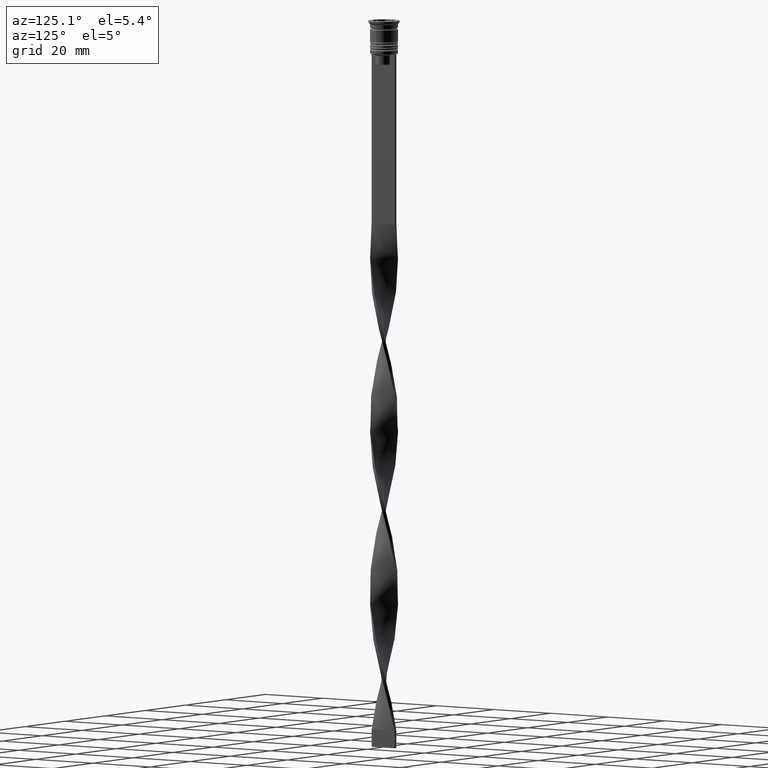
[diagram: clean part render]
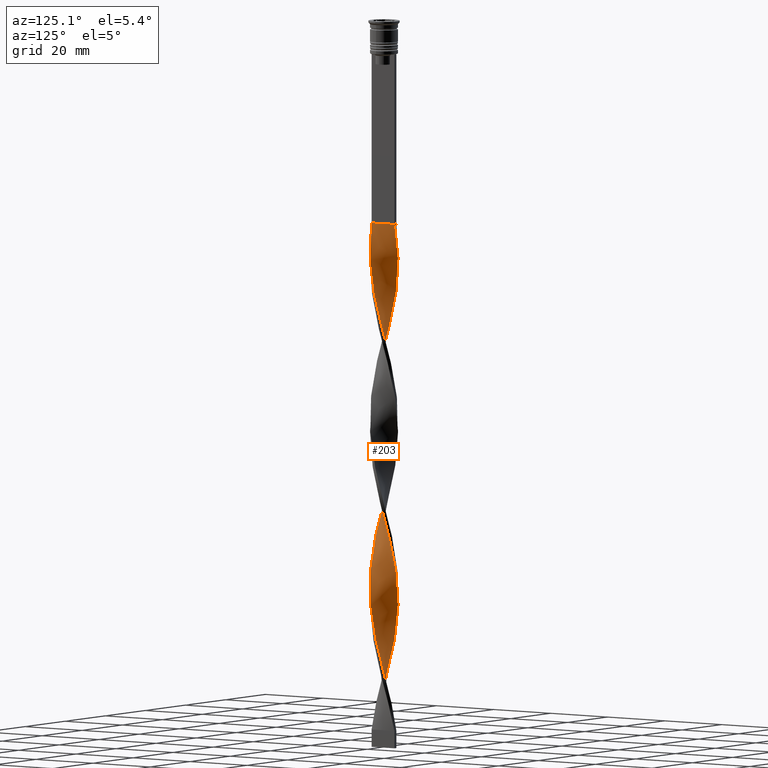
[diagram: same view with one face highlighted and labeled with its STEP entity id]
A machine part, auxiliary view. The second image highlights one B-rep face of the part: STEP entity #203.
In plain terms, the highlighted face is a freeform B-spline surface patch.
Its self-contained STEP definition (entity closure, byte-faithful):
#2 = CARTESIAN_POINT ( 'NONE',  ( 3.306990529297890724, -2.335239837431193788, -71.38235294117646390 ) ) ;
#11 = CARTESIAN_POINT ( 'NONE',  ( -3.679781925323283076, -1.687820026322619738, -188.7549019607843093 ) ) ;
#17 = CARTESIAN_POINT ( 'NONE',  ( -2.325278115975899063, -3.292883490705915683, -144.3823529411764639 ) ) ;
#18 = CARTESIAN_POINT ( 'NONE',  ( -3.357783987531980152, 2.230535068783684682, -75.67647058823528994 ) ) ;
#39 = CARTESIAN_POINT ( 'NONE',  ( 2.020147525076906980, 3.508352239459040067, -194.4803921568627629 ) ) ;
#41 = CARTESIAN_POINT ( 'NONE',  ( -0.2435115214243304405, 4.023767157643892034, -61.36274509803921262 ) ) ;
#53 = CARTESIAN_POINT ( 'NONE',  ( 1.680620083644616125, 3.664084624357134778, -195.9117647058823479 ) ) ;
#59 = CARTESIAN_POINT ( 'NONE',  ( -2.630408706874892033, -3.077414741952792188, -142.9509803921568789 ) ) ;
#77 = CARTESIAN_POINT ( 'NONE',  ( 3.064287033196558596, -2.619187847059357921, -167.2843137254901933 ) ) ;
#78 = CARTESIAN_POINT ( 'NONE',  ( -3.856468655234277065, 1.231739002543613237, -79.97058823529411598 ) ) ;
#83 = CARTESIAN_POINT ( 'NONE',  ( -3.306990529297891612, 2.335239837431193344, -120.0490196078431211 ) ) ;
#100 = CARTESIAN_POINT ( 'NONE',  ( 0.1293454150318811002, -4.046331823121016136, -154.4019607843137294 ) ) ;
#113 = CARTESIAN_POINT ( 'NONE',  ( 1.582314657248345080, -3.726367102775659745, -62.79411764705881893 ) ) ;
#125 = CARTESIAN_POINT ( 'NONE',  ( -2.530837219374230340, -3.137652461479778943, -98.57843137254901933 ) ) ;
#132 = CARTESIAN_POINT ( 'NONE',  ( -3.493386227310586456, -2.011529931876905319, -92.85294117647057988 ) ) ;
#141 = CARTESIAN_POINT ( 'NONE',  ( -1.582314657248345968, -3.726367102775659301, -102.8725490196078312 ) ) ;
#150 = CARTESIAN_POINT ( 'NONE',  ( 2.240090901653235100, -3.372169066272035387, -65.65686274509803866 ) ) ;
#161 = CARTESIAN_POINT ( 'NONE',  ( 4.041005374160881125, 0.2445547488692193516, -134.3627450980391984 ) ) ;
#167 = CARTESIAN_POINT ( 'NONE',  ( -2.530837219374230784, 3.137652461479778498, -115.7549019607843093 ) ) ;
#175 = CARTESIAN_POINT ( 'NONE',  ( -0.1293454150318806006, -4.046331823121015248, -108.5980392156862706 ) ) ;
#181 = CARTESIAN_POINT ( 'NONE',  ( -2.821583537095227356, -2.903135856687522942, -97.14705882352940591 ) ) ;
#190 = CARTESIAN_POINT ( 'NONE',  ( 3.927262761293754956, -0.9829235285346253903, -77.10784313725490335 ) ) ;
#196 = CARTESIAN_POINT ( 'NONE',  ( -3.936802525448486634, 0.8669405260007252423, -178.7352941176470438 ) ) ;
#198 = CARTESIAN_POINT ( 'NONE',  ( 2.890751590931330384, 2.809547159157145035, -92.85294117647057988 ) ) ;
#203 = ADVANCED_FACE ( 'NONE', ( #3151 ), #3420, .T. ) ;
#206 = CARTESIAN_POINT ( 'NONE',  ( 0.2435115214243295800, -4.023767157643892034, -110.0294117647058698 ) ) ;
#228 = CARTESIAN_POINT ( 'NONE',  ( 3.064287033196558596, -2.619187847059357921, -69.95098039215686470 ) ) ;
#230 = CARTESIAN_POINT ( 'NONE',  ( 2.020147525076905648, -3.508352239459040067, -117.1862745098039369 ) ) ;
#250 = CARTESIAN_POINT ( 'NONE',  ( -2.890751590931329940, 2.809547159157145479, -170.1470588235293917 ) ) ;
#253 = CARTESIAN_POINT ( 'NONE',  ( -2.530837219374230340, -3.137652461479778943, -195.9117647058823479 ) ) ;
#257 = CARTESIAN_POINT ( 'NONE',  ( 3.679781925323283076, -1.687820026322619293, -74.24509803921567652 ) ) ;
#262 = CARTESIAN_POINT ( 'NONE',  ( -0.4999999999999994449, 4.000000000000000000, -204.5000000000000000 ) ) ;
#276 = CARTESIAN_POINT ( 'NONE',  ( 3.064287033196558596, -2.619187847059357921, -69.95098039215686470 ) ) ;
#290 = CARTESIAN_POINT ( 'NONE',  ( -3.936802525448487522, -0.8669405260007234659, -132.9313725490196134 ) ) ;
#294 = CARTESIAN_POINT ( 'NONE',  ( -3.927262761293755400, -0.9829235285346250572, -185.8921568627451109 ) ) ;
#314 = CARTESIAN_POINT ( 'NONE',  ( -3.306990529297891168, 2.335239837431193344, -120.0490196078431353 ) ) ;
#333 = CARTESIAN_POINT ( 'NONE',  ( 2.890751590931330384, 2.809547159157145035, -190.1862745098039227 ) ) ;
#345 = CARTESIAN_POINT ( 'NONE',  ( -0.5000000000000005551, -4.000000000000000000, -204.5000000000000000 ) ) ;
#359 = CARTESIAN_POINT ( 'NONE',  ( 0.9787305500464337227, 3.910509750710999821, -198.7745098039215463 ) ) ;
#375 = CARTESIAN_POINT ( 'NONE',  ( 0.8706545849681190941, -3.953668176878985197, -157.2647058823529278 ) ) ;
#379 = CARTESIAN_POINT ( 'NONE',  ( -3.064287033196558596, 2.619187847059357921, -118.6176470588235219 ) ) ;
#395 = CARTESIAN_POINT ( 'NONE',  ( -1.911202779450790201, 3.549268084523846234, -112.8921568627450966 ) ) ;
#396 = CARTESIAN_POINT ( 'NONE',  ( 3.357783987531980152, 2.230535068783684238, -187.3235294117646959 ) ) ;
#403 = ORIENTED_EDGE ( 'NONE', *, *, #1551, .F. ) ;
#407 = CARTESIAN_POINT ( 'NONE',  ( -2.630408706874893365, 3.077414741952792188, -71.38235294117646390 ) ) ;
#411 = VERTEX_POINT ( 'NONE', #3574 ) ;
#430 = CARTESIAN_POINT ( 'NONE',  ( -1.341092642212326380, 3.819817009255230822, -65.65686274509803866 ) ) ;
#435 = CARTESIAN_POINT ( 'NONE',  ( 1.226484621108231199, 3.840017639827321805, -152.9705882352941160 ) ) ;
#444 = CARTESIAN_POINT ( 'NONE',  ( -2.530837219374230340, -3.137652461479778943, -98.57843137254901933 ) ) ;
#453 = CARTESIAN_POINT ( 'NONE',  ( 1.341092642212325936, -3.819817009255230822, -114.3235294117646959 ) ) ;
#462 = CARTESIAN_POINT ( 'NONE',  ( -2.325278115975899507, 3.292883490705915239, -69.95098039215686470 ) ) ;
#472 = CARTESIAN_POINT ( 'NONE',  ( 3.151094474987766514, -2.541679576361500992, -122.9117647058823621 ) ) ;
#492 = CARTESIAN_POINT ( 'NONE',  ( 4.017136395662697979, -0.5021420494578380245, -131.5000000000000000 ) ) ;
#501 = CARTESIAN_POINT ( 'NONE',  ( 2.630408706874893809, -3.077414741952791744, -120.0490196078431211 ) ) ;
#513 = CARTESIAN_POINT ( 'NONE',  ( 1.226484621108232309, -3.840017639827321805, -61.36274509803921262 ) ) ;
#518 = CARTESIAN_POINT ( 'NONE',  ( 3.984134067727318040, -0.6137391387019215383, -78.53921568627450256 ) ) ;
#520 = CARTESIAN_POINT ( 'NONE',  ( 0.6163684578805417313, -4.001202492166771485, -111.4607843137254974 ) ) ;
#527 = CARTESIAN_POINT ( 'NONE',  ( -4.041005374160881125, -0.2445547488692189353, -183.0294117647059124 ) ) ;
#531 = CARTESIAN_POINT ( 'NONE',  ( 3.984134067727318040, -0.6137391387019215383, -78.53921568627450256 ) ) ;
#543 = CARTESIAN_POINT ( 'NONE',  ( 3.927262761293754956, 0.9829235285346239470, -137.2254901960784821 ) ) ;
#556 = CARTESIAN_POINT ( 'NONE',  ( -0.1293454150318815721, 4.046331823121016136, -105.7352941176470722 ) ) ;
#565 = CARTESIAN_POINT ( 'NONE',  ( 2.821583537095227356, 2.903135856687522498, -145.8137254901960489 ) ) ;
#569 = CARTESIAN_POINT ( 'NONE',  ( -4.041005374160881125, 0.2445547488692170757, -128.6372549019607447 ) ) ;
#571 = CARTESIAN_POINT ( 'NONE',  ( -4.029070884911789996, 0.1287936502943097528, -181.5980392156862706 ) ) ;
#581 = CARTESIAN_POINT ( 'NONE',  ( 3.357783987531980152, 2.230535068783684238, -89.99019607843136725 ) ) ;
#614 = CARTESIAN_POINT ( 'NONE',  ( 3.803522343308519016, -1.335371777428622009, -173.0098039215686185 ) ) ;
#632 = CARTESIAN_POINT ( 'NONE',  ( 3.357783987531980152, 2.230535068783684238, -187.3235294117646959 ) ) ;
#651 = CARTESIAN_POINT ( 'NONE',  ( 0.2435115214243305515, 4.023767157643892034, -201.6372549019607732 ) ) ;
#652 = CARTESIAN_POINT ( 'NONE',  ( -2.020147525076906980, 3.508352239459040067, -68.51960784313725128 ) ) ;
#659 = CARTESIAN_POINT ( 'NONE',  ( 3.064287033196558596, -2.619187847059357921, -167.2843137254901933 ) ) ;
#668 = CARTESIAN_POINT ( 'NONE',  ( -2.530837219374230340, -3.137652461479778943, -195.9117647058823479 ) ) ;
#677 = CARTESIAN_POINT ( 'NONE',  ( -1.680620083644617901, -3.664084624357133446, -147.2450980392156907 ) ) ;
#690 = CARTESIAN_POINT ( 'NONE',  ( 0.5000000000000000000, -4.000000000000000000, -58.50000000000000000 ) ) ;
#697 = CARTESIAN_POINT ( 'NONE',  ( -3.856468655234277065, -1.231739002543614125, -134.3627450980391984 ) ) ;
#717 = CARTESIAN_POINT ( 'NONE',  ( 0.1293454150318809337, 4.046331823121015248, -59.93137254901961342 ) ) ;
#729 = CARTESIAN_POINT ( 'NONE',  ( -0.2435115214243304405, 4.023767157643892034, -61.36274509803921262 ) ) ;
#737 = CARTESIAN_POINT ( 'NONE',  ( 1.582314657248346412, 3.726367102775658413, -151.5392156862744741 ) ) ;
#751 = CARTESIAN_POINT ( 'NONE',  ( -3.064287033196559040, -2.619187847059357477, -95.71568627450979250 ) ) ;
#759 = CARTESIAN_POINT ( 'NONE',  ( 3.856468655234277954, -1.231739002543611905, -128.6372549019607732 ) ) ;
#762 = CARTESIAN_POINT ( 'NONE',  ( -1.911202779450790201, 3.549268084523846234, -112.8921568627450966 ) ) ;
#770 = CARTESIAN_POINT ( 'NONE',  ( -3.679781925323283076, -1.687820026322619738, -91.42156862745096646 ) ) ;
#777 = CARTESIAN_POINT ( 'NONE',  ( -0.1293454150318806006, -4.046331823121015248, -108.5980392156862706 ) ) ;
#787 = CARTESIAN_POINT ( 'NONE',  ( -1.680620083644616125, 3.664084624357134778, -67.08823529411763786 ) ) ;
#795 = CARTESIAN_POINT ( 'NONE',  ( -3.710471077655235206, 1.575564781874740694, -175.8725490196078454 ) ) ;
#813 = CARTESIAN_POINT ( 'NONE',  ( -3.679781925323283076, -1.687820026322619738, -91.42156862745098067 ) ) ;
#832 = CARTESIAN_POINT ( 'NONE',  ( 0.6163684578805426195, 4.001202492166770597, -102.8725490196078312 ) ) ;
#840 = CARTESIAN_POINT ( 'NONE',  ( 4.041005374160881125, -0.2445547488692185190, -79.97058823529411598 ) ) ;
#853 = CARTESIAN_POINT ( 'NONE',  ( 3.856468655234277065, 1.231739002543613681, -85.69607843137254122 ) ) ;
#860 = CARTESIAN_POINT ( 'NONE',  ( 0.1293454150318810725, -4.046331823121016136, -154.4019607843137294 ) ) ;
#864 = CARTESIAN_POINT ( 'NONE',  ( 2.325278115975899507, -3.292883490705915239, -118.6176470588235219 ) ) ;
#874 = CARTESIAN_POINT ( 'NONE',  ( -3.679781925323283076, -1.687820026322619738, -188.7549019607843093 ) ) ;
#889 = CARTESIAN_POINT ( 'NONE',  ( -3.936802525448486634, 0.8669405260007252423, -178.7352941176470438 ) ) ;
#899 = CARTESIAN_POINT ( 'NONE',  ( -3.679781925323282632, 1.687820026322619960, -122.9117647058823479 ) ) ;
#908 = CARTESIAN_POINT ( 'NONE',  ( -3.856468655234276621, 1.231739002543613237, -177.3039215686274304 ) ) ;
#915 = CARTESIAN_POINT ( 'NONE',  ( 1.911202779450789535, -3.549268084523846678, -161.5588235294117680 ) ) ;
#925 = CARTESIAN_POINT ( 'NONE',  ( 2.821583537095227356, -2.903135856687522942, -165.8529411764705799 ) ) ;
#938 = CARTESIAN_POINT ( 'NONE',  ( 3.856468655234277065, 1.231739002543613681, -183.0294117647059124 ) ) ;
#959 = CARTESIAN_POINT ( 'NONE',  ( -3.984134067727318040, 0.6137391387019228706, -127.2058823529411740 ) ) ;
#960 = CARTESIAN_POINT ( 'NONE',  ( -2.630408706874892921, 3.077414741952791744, -71.38235294117646390 ) ) ;
#969 = CARTESIAN_POINT ( 'NONE',  ( 1.911202779450789535, -3.549268084523846678, -161.5588235294117680 ) ) ;
#975 = CARTESIAN_POINT ( 'NONE',  ( 0.9787305500464337227, 3.910509750710999821, -198.7745098039215463 ) ) ;
#984 = CARTESIAN_POINT ( 'NONE',  ( -2.890751590931330828, -2.809547159157144591, -141.5196078431372371 ) ) ;
#999 = CARTESIAN_POINT ( 'NONE',  ( 0.2435115214243305515, 4.023767157643892034, -201.6372549019607732 ) ) ;
#1007 = CARTESIAN_POINT ( 'NONE',  ( -1.341092642212325714, -3.819817009255231266, -148.6764705882353326 ) ) ;
#1008 = CARTESIAN_POINT ( 'NONE',  ( 3.856468655234276621, 1.231739002543613681, -183.0294117647059124 ) ) ;
#1010 = CARTESIAN_POINT ( 'NONE',  ( -3.936802525448486634, 0.8669405260007252423, -81.40196078431371518 ) ) ;
#1027 = CARTESIAN_POINT ( 'NONE',  ( 0.5000000000000000000, 4.000000000000000000, -58.50000000000000000 ) ) ;
#1037 = CARTESIAN_POINT ( 'NONE',  ( -4.041005374160881125, -0.2445547488692189630, -85.69607843137254122 ) ) ;
#1044 = CARTESIAN_POINT ( 'NONE',  ( 0.5000000000000000000, 4.000000000000000000, -155.8333333333333144 ) ) ;
#1057 = CARTESIAN_POINT ( 'NONE',  ( -4.017136395662697979, 0.5021420494578374694, -82.83333333333332860 ) ) ;
#1065 = CARTESIAN_POINT ( 'NONE',  ( -1.341092642212326380, 3.819817009255230822, -162.9901960784313530 ) ) ;
#1081 = CARTESIAN_POINT ( 'NONE',  ( -2.240090901653235544, -3.372169066272034499, -100.0098039215686327 ) ) ;
#1087 = CARTESIAN_POINT ( 'NONE',  ( -2.630408706874892921, 3.077414741952791744, -168.7156862745097783 ) ) ;
#1090 =( BOUNDED_CURVE ( )  B_SPLINE_CURVE ( 2, ( #1027, #717, #41, #1288, #3449, #3160, #2489, #652, #1940, #960, #1876, #1903, #18, #3434, #3718, #78, #1010, #2221, #1923, #3138, #1626, #1369, #1650, #813, #1421, #2585, #2625, #181, #125, #3238, #1964, #141, #3186, #1666, #1388, #777, #2608, #2642, #2874, #453, #1999, #2031, #3831, #3491, #3469, #472, #1702, #1121, #3798, #759, #1352, #492, #2906, #161, #2332, #3219, #3252, #3506, #3524, #2568, #1982, #3773, #3756, #1102, #3545, #737, #435, #2017, #1044, #2255, #2314, #2890, #2929, #1065, #2280, #3207, #1682, #1087, #1717, #2299, #1404, #3818, #795, #2946, #196, #2707, #571, #527, #1185, #294, #2397, #874, #3283, #2687, #2745, #2440, #253, #3632, #1477, #2996, #3893, #2093, #3601 ),
 .UNSPECIFIED., .F., .T. ) 
 B_SPLINE_CURVE_WITH_KNOTS ( ( 3, 2, 2, 2, 2, 2, 2, 2, 2, 2, 2, 2, 2, 2, 2, 2, 2, 2, 2, 2, 2, 2, 2, 2, 2, 2, 2, 2, 2, 2, 2, 2, 2, 2, 2, 2, 2, 2, 2, 2, 2, 2, 2, 2, 2, 2, 2, 2, 2, 2, 2, 3 ),
 ( 0.000000000000000000, 0.01470588235294117453, 0.02941176470588234906, 0.04411764705882353227, 0.05882352941176469813, 0.07352941176470588480, 0.08823529411764706454, 0.1029411764705882443, 0.1176470588235293963, 0.1323529411764705899, 0.1470588235294117696, 0.1617647058823529493, 0.1764705882352941291, 0.1911764705882352811, 0.2058823529411764885, 0.2205882352941176405, 0.2352941176470587925, 0.2500000000000000000, 0.2647058823529411797, 0.2794117647058823595, 0.2941176470588235392, 0.3088235294117647189, 0.3235294117647058987, 0.3382352941176470229, 0.3529411764705882582, 0.3676470588235294379, 0.3823529411764705621, 0.3970588235294117418, 0.4117647058823529771, 0.4264705882352941013, 0.4411764705882352811, 0.4558823529411764608, 0.4705882352941175850, 0.4852941176470588203, 0.5000000000000000000, 0.5147058823529411242, 0.5294117647058823595, 0.5441176470588234837, 0.5588235294117647189, 0.5735294117647058432, 0.5882352941176470784, 0.6029411764705882026, 0.6176470588235294379, 0.6323529411764705621, 0.6470588235294117974, 0.6617647058823529216, 0.6764705882352940458, 0.6911764705882351700, 0.7058823529411765163, 0.7205882352941176405, 0.7352941176470588758, 0.7500000000000000000 ),
 .UNSPECIFIED. ) 
 CURVE ( )  GEOMETRIC_REPRESENTATION_ITEM ( )  RATIONAL_B_SPLINE_CURVE ( ( 1.000000000000000000, 0.9957341762950344677, 1.000000000000000000, 0.9957341762950344677, 1.000000000000000000, 0.9957341762950344677, 1.000000000000000000, 0.9957341762950344677, 1.000000000000000000, 0.9957341762950344677, 1.000000000000000000, 0.9957341762950344677, 1.000000000000000000, 0.9957341762950344677, 1.000000000000000000, 0.9957341762950344677, 1.000000000000000000, 0.9957341762950344677, 1.000000000000000000, 0.9957341762950344677, 1.000000000000000000, 0.9957341762950344677, 1.000000000000000000, 0.9957341762950344677, 1.000000000000000000, 0.9957341762950344677, 1.000000000000000000, 0.9957341762950344677, 1.000000000000000000, 0.9957341762950344677, 1.000000000000000000, 0.9957341762950344677, 1.000000000000000000, 0.9957341762950344677, 1.000000000000000000, 0.9957341762950344677, 1.000000000000000000, 0.9957341762950344677, 1.000000000000000000, 0.9957341762950344677, 1.000000000000000000, 0.9957341762950344677, 1.000000000000000000, 0.9957341762950344677, 1.000000000000000000, 0.9957341762950344677, 1.000000000000000000, 0.9957341762950344677, 1.000000000000000000, 0.9957341762950344677, 1.000000000000000000, 0.9957341762950344677, 1.000000000000000000, 0.9957341762950344677, 1.000000000000000000, 0.9957341762950344677, 1.000000000000000000, 0.9957341762950344677, 1.000000000000000000, 0.9957341762950344677, 1.000000000000000000, 0.9957341762950344677, 1.000000000000000000, 0.9957341762950344677, 1.000000000000000000, 0.9957341762950344677, 1.000000000000000000, 0.9957341762950344677, 1.000000000000000000, 0.9957341762950344677, 1.000000000000000000, 0.9957341762950344677, 1.000000000000000000, 0.9957341762950344677, 1.000000000000000000, 0.9957341762950344677, 1.000000000000000000, 0.9957341762950344677, 1.000000000000000000, 0.9957341762950344677, 1.000000000000000000, 0.9957341762950344677, 1.000000000000000000, 0.9957341762950344677, 1.000000000000000000, 0.9957341762950344677, 1.000000000000000000, 0.9957341762950344677, 1.000000000000000000, 0.9957341762950344677, 1.000000000000000000, 0.9957341762950344677, 1.000000000000000000, 0.9957341762950344677, 1.000000000000000000, 0.9957341762950344677, 1.000000000000000000, 0.9957341762950344677, 1.000000000000000000, 0.9957341762950344677, 1.000000000000000000, 0.9957341762950344677, 1.000000000000000000 ) ) 
 REPRESENTATION_ITEM ( '' )  );
#1102 = CARTESIAN_POINT ( 'NONE',  ( 2.240090901653234212, 3.372169066272035831, -148.6764705882353326 ) ) ;
#1106 = CARTESIAN_POINT ( 'NONE',  ( 2.630408706874893365, 3.077414741952792188, -94.28431372549020750 ) ) ;
#1121 = CARTESIAN_POINT ( 'NONE',  ( 3.564473500076193790, -1.919390561205869039, -125.7745098039216032 ) ) ;
#1149 = CARTESIAN_POINT ( 'NONE',  ( 2.020147525076906536, 3.508352239459040067, -97.14705882352939170 ) ) ;
#1150 = CARTESIAN_POINT ( 'NONE',  ( 1.680620083644616125, 3.664084624357134778, -98.57843137254901933 ) ) ;
#1159 = CARTESIAN_POINT ( 'NONE',  ( -2.325278115975899507, 3.292883490705915239, -167.2843137254901933 ) ) ;
#1165 = CARTESIAN_POINT ( 'NONE',  ( 0.9787305500464337227, 3.910509750710999821, -101.4411764705882320 ) ) ;
#1167 = CARTESIAN_POINT ( 'NONE',  ( 0.2435115214243305515, 4.023767157643892034, -104.3039215686274446 ) ) ;
#1177 = CARTESIAN_POINT ( 'NONE',  ( 3.679781925323283076, 1.687820026322619293, -140.0882352941176237 ) ) ;
#1185 = CARTESIAN_POINT ( 'NONE',  ( -3.984134067727318040, -0.6137391387019219824, -184.4607843137254690 ) ) ;
#1190 = CARTESIAN_POINT ( 'NONE',  ( -0.4999999999999994449, 4.000000000000000000, -107.1666666666666572 ) ) ;
#1201 = CARTESIAN_POINT ( 'NONE',  ( 4.041005374160881125, 0.2445547488692193794, -134.3627450980391984 ) ) ;
#1204 = CARTESIAN_POINT ( 'NONE',  ( -3.151094474987767402, -2.541679576361500104, -140.0882352941176237 ) ) ;
#1211 = CARTESIAN_POINT ( 'NONE',  ( -1.226484621108231421, 3.840017639827321805, -110.0294117647058698 ) ) ;
#1223 = CARTESIAN_POINT ( 'NONE',  ( 0.8706545849681190941, -3.953668176878985197, -59.93137254901961342 ) ) ;
#1234 = CARTESIAN_POINT ( 'NONE',  ( -2.240090901653235544, -3.372169066272034499, -197.3431372549019898 ) ) ;
#1242 = CARTESIAN_POINT ( 'NONE',  ( 1.582314657248345080, -3.726367102775659301, -160.1274509803921831 ) ) ;
#1244 = CARTESIAN_POINT ( 'NONE',  ( 3.564473500076194235, 1.919390561205868817, -185.8921568627451109 ) ) ;
#1272 = CARTESIAN_POINT ( 'NONE',  ( 1.680620083644616125, 3.664084624357134778, -195.9117647058823479 ) ) ;
#1287 = CARTESIAN_POINT ( 'NONE',  ( -3.064287033196558596, 2.619187847059357921, -118.6176470588235219 ) ) ;
#1288 = CARTESIAN_POINT ( 'NONE',  ( -0.6163684578805417313, 4.001202492166770597, -62.79411764705881893 ) ) ;
#1307 = CARTESIAN_POINT ( 'NONE',  ( 3.493386227310586012, -2.011529931876905763, -170.1470588235293917 ) ) ;
#1329 = CARTESIAN_POINT ( 'NONE',  ( -2.240090901653234212, 3.372169066272035387, -114.3235294117646959 ) ) ;
#1339 = CARTESIAN_POINT ( 'NONE',  ( 1.911202779450789535, -3.549268084523846678, -64.22549019607842524 ) ) ;
#1342 = CARTESIAN_POINT ( 'NONE',  ( -2.890751590931329940, 2.809547159157145479, -72.81372549019607732 ) ) ;
#1350 = CARTESIAN_POINT ( 'NONE',  ( 2.630408706874893365, 3.077414741952792188, -191.6176470588235077 ) ) ;
#1352 = CARTESIAN_POINT ( 'NONE',  ( 3.936802525448487522, -0.8669405260007250202, -130.0686274509803866 ) ) ;
#1355 = EDGE_CURVE ( 'NONE', #2985, #2348, #3148, .T. ) ;
#1369 = CARTESIAN_POINT ( 'NONE',  ( -3.927262761293755400, -0.9829235285346250572, -88.55882352941175384 ) ) ;
#1380 = CARTESIAN_POINT ( 'NONE',  ( 0.5000000000000000000, 4.000000000000000000, -58.50000000000000000 ) ) ;
#1388 = CARTESIAN_POINT ( 'NONE',  ( -0.5000000000000005551, -4.000000000000000000, -107.1666666666666572 ) ) ;
#1404 = CARTESIAN_POINT ( 'NONE',  ( -3.357783987531980152, 2.230535068783684682, -173.0098039215686185 ) ) ;
#1406 = CARTESIAN_POINT ( 'NONE',  ( 2.325278115975899951, 3.292883490705914795, -95.71568627450979250 ) ) ;
#1421 = CARTESIAN_POINT ( 'NONE',  ( -3.493386227310586456, -2.011529931876905319, -92.85294117647057988 ) ) ;
#1431 = CARTESIAN_POINT ( 'NONE',  ( 0.9787305500464342778, -3.910509750710998933, -112.8921568627450966 ) ) ;
#1445 = CARTESIAN_POINT ( 'NONE',  ( 0.5000000000000000000, -4.000000000000000000, -58.50000000000000000 ) ) ;
#1453 = CARTESIAN_POINT ( 'NONE',  ( 3.151094474987766958, -2.541679576361500992, -122.9117647058823479 ) ) ;
#1464 = CARTESIAN_POINT ( 'NONE',  ( 4.029070884911789108, 0.1287936502943091699, -81.40196078431371518 ) ) ;
#1477 = CARTESIAN_POINT ( 'NONE',  ( -1.911202779450789535, -3.549268084523846678, -198.7745098039215463 ) ) ;
#1481 = CARTESIAN_POINT ( 'NONE',  ( 3.710471077655235206, 1.575564781874741138, -87.12745098039215463 ) ) ;
#1500 = CARTESIAN_POINT ( 'NONE',  ( 3.936802525448487522, 0.8669405260007247982, -84.26470588235294201 ) ) ;
#1514 = CARTESIAN_POINT ( 'NONE',  ( -2.020147525076906980, -3.508352239459039623, -145.8137254901960489 ) ) ;
#1533 = CARTESIAN_POINT ( 'NONE',  ( -3.984134067727318040, 0.6137391387019228706, -127.2058823529411740 ) ) ;
#1534 = CARTESIAN_POINT ( 'NONE',  ( 0.8706545849681190941, 3.953668176878985641, -154.4019607843137294 ) ) ;
#1541 = CARTESIAN_POINT ( 'NONE',  ( 2.530837219374230340, -3.137652461479778943, -164.4215686274509665 ) ) ;
#1551 = EDGE_CURVE ( 'NONE', #2985, #2142, #3246, .T. ) ;
#1553 = CARTESIAN_POINT ( 'NONE',  ( 1.341092642212326824, 3.819817009255229934, -197.3431372549019898 ) ) ;
#1561 = CARTESIAN_POINT ( 'NONE',  ( 2.630408706874892921, 3.077414741952791744, -191.6176470588235077 ) ) ;
#1571 = CARTESIAN_POINT ( 'NONE',  ( 0.8706545849681190941, -3.953668176878984752, -157.2647058823529278 ) ) ;
#1576 = CARTESIAN_POINT ( 'NONE',  ( -3.064287033196559040, -2.619187847059357477, -193.0490196078431211 ) ) ;
#1586 = CARTESIAN_POINT ( 'NONE',  ( -0.1293454150318815721, 4.046331823121016136, -203.0686274509803582 ) ) ;
#1587 = CARTESIAN_POINT ( 'NONE',  ( 4.029070884911789108, 0.1287936502943091699, -178.7352941176470438 ) ) ;
#1600 = CARTESIAN_POINT ( 'NONE',  ( -1.226484621108232531, -3.840017639827321805, -201.6372549019607732 ) ) ;
#1607 = CARTESIAN_POINT ( 'NONE',  ( 1.226484621108232309, -3.840017639827321805, -158.6960784313725412 ) ) ;
#1625 = CARTESIAN_POINT ( 'NONE',  ( -3.357783987531979708, -2.230535068783685571, -138.6568627450980387 ) ) ;
#1626 = CARTESIAN_POINT ( 'NONE',  ( -3.984134067727318040, -0.6137391387019219824, -87.12745098039215463 ) ) ;
#1643 = ORIENTED_EDGE ( 'NONE', *, *, #1791, .F. ) ;
#1650 = CARTESIAN_POINT ( 'NONE',  ( -3.803522343308519016, -1.335371777428621565, -89.99019607843136725 ) ) ;
#1661 = CARTESIAN_POINT ( 'NONE',  ( -3.927262761293754956, -0.9829235285346250572, -88.55882352941175384 ) ) ;
#1666 = CARTESIAN_POINT ( 'NONE',  ( -0.8706545849681186500, -3.953668176878986085, -105.7352941176470722 ) ) ;
#1682 = CARTESIAN_POINT ( 'NONE',  ( -2.325278115975899507, 3.292883490705915239, -167.2843137254901933 ) ) ;
#1694 = CARTESIAN_POINT ( 'NONE',  ( -0.8706545849681186500, -3.953668176878985641, -105.7352941176470722 ) ) ;
#1702 = CARTESIAN_POINT ( 'NONE',  ( 3.357783987531981040, -2.230535068783683350, -124.3431372549019471 ) ) ;
#1717 = CARTESIAN_POINT ( 'NONE',  ( -2.890751590931329940, 2.809547159157145479, -170.1470588235293917 ) ) ;
#1727 = CARTESIAN_POINT ( 'NONE',  ( -4.041005374160881125, -0.2445547488692189630, -183.0294117647059124 ) ) ;
#1734 = CARTESIAN_POINT ( 'NONE',  ( 3.803522343308519016, -1.335371777428622009, -75.67647058823528994 ) ) ;
#1738 = CARTESIAN_POINT ( 'NONE',  ( 0.5000000000000000000, -4.000000000000000000, -155.8333333333333144 ) ) ;
#1739 = CARTESIAN_POINT ( 'NONE',  ( 1.341092642212325936, -3.819817009255230822, -114.3235294117646959 ) ) ;
#1753 = CARTESIAN_POINT ( 'NONE',  ( -0.1293454150318815721, 4.046331823121016136, -105.7352941176470722 ) ) ;
#1762 = CARTESIAN_POINT ( 'NONE',  ( 3.710471077655235206, 1.575564781874741138, -87.12745098039215463 ) ) ;
#1783 = CARTESIAN_POINT ( 'NONE',  ( 3.856468655234276621, 1.231739002543613681, -85.69607843137254122 ) ) ;
#1785 = CARTESIAN_POINT ( 'NONE',  ( 2.530837219374231672, 3.137652461479777610, -147.2450980392156907 ) ) ;
#1791 = EDGE_CURVE ( 'NONE', #2142, #411, #1090, .T. ) ;
#1806 = CARTESIAN_POINT ( 'NONE',  ( -3.803522343308519016, 1.335371777428620899, -124.3431372549019471 ) ) ;
#1807 = CARTESIAN_POINT ( 'NONE',  ( -2.630408706874892033, -3.077414741952792632, -142.9509803921568789 ) ) ;
#1832 = CARTESIAN_POINT ( 'NONE',  ( -4.017136395662697979, -0.5021420494578364702, -131.5000000000000000 ) ) ;
#1838 = CARTESIAN_POINT ( 'NONE',  ( 3.927262761293755400, -0.9829235285346255013, -174.4411764705882320 ) ) ;
#1853 = CARTESIAN_POINT ( 'NONE',  ( 3.984134067727318040, -0.6137391387019215383, -175.8725490196078454 ) ) ;
#1874 = CARTESIAN_POINT ( 'NONE',  ( -3.564473500076194679, -1.919390561205867707, -137.2254901960784537 ) ) ;
#1876 = CARTESIAN_POINT ( 'NONE',  ( -2.890751590931329940, 2.809547159157145479, -72.81372549019607732 ) ) ;
#1890 = CARTESIAN_POINT ( 'NONE',  ( -0.4999999999999997780, 1.333333333333333481, -204.5000000000000000 ) ) ;
#1892 = CARTESIAN_POINT ( 'NONE',  ( -0.6163684578805417313, 4.001202492166771485, -160.1274509803922115 ) ) ;
#1902 = CARTESIAN_POINT ( 'NONE',  ( -0.6163684578805429526, -4.001202492166770597, -151.5392156862744741 ) ) ;
#1903 = CARTESIAN_POINT ( 'NONE',  ( -3.151094474987766958, 2.541679576361500104, -74.24509803921567652 ) ) ;
#1912 = CARTESIAN_POINT ( 'NONE',  ( 0.6163684578805426195, 4.001202492166771485, -200.2058823529411598 ) ) ;
#1913 = CARTESIAN_POINT ( 'NONE',  ( 0.8706545849681190941, -3.953668176878984752, -59.93137254901961342 ) ) ;
#1922 = CARTESIAN_POINT ( 'NONE',  ( -0.9787305500464340557, -3.910509750710999821, -150.1078431372548891 ) ) ;
#1923 = CARTESIAN_POINT ( 'NONE',  ( -4.029070884911789996, 0.1287936502943097528, -84.26470588235294201 ) ) ;
#1928 = CARTESIAN_POINT ( 'NONE',  ( 1.226484621108232309, -3.840017639827321805, -158.6960784313725412 ) ) ;
#1940 = CARTESIAN_POINT ( 'NONE',  ( -2.325278115975899507, 3.292883490705915239, -69.95098039215686470 ) ) ;
#1956 = CARTESIAN_POINT ( 'NONE',  ( -3.936802525448486634, 0.8669405260007252423, -81.40196078431371518 ) ) ;
#1964 = CARTESIAN_POINT ( 'NONE',  ( -1.911202779450789535, -3.549268084523846678, -101.4411764705882320 ) ) ;
#1982 = CARTESIAN_POINT ( 'NONE',  ( 3.064287033196558152, 2.619187847059358365, -144.3823529411764639 ) ) ;
#1999 = CARTESIAN_POINT ( 'NONE',  ( 1.680620083644616569, -3.664084624357134334, -115.7549019607843093 ) ) ;
#2008 = CARTESIAN_POINT ( 'NONE',  ( 3.493386227310586012, -2.011529931876905763, -72.81372549019607732 ) ) ;
#2010 = CARTESIAN_POINT ( 'NONE',  ( -1.911202779450789535, -3.549268084523846678, -101.4411764705882320 ) ) ;
#2017 = CARTESIAN_POINT ( 'NONE',  ( 0.8706545849681190941, 3.953668176878986085, -154.4019607843137294 ) ) ;
#2021 = CARTESIAN_POINT ( 'NONE',  ( 1.341092642212326824, 3.819817009255229934, -100.0098039215686327 ) ) ;
#2031 = CARTESIAN_POINT ( 'NONE',  ( 2.020147525076906092, -3.508352239459040067, -117.1862745098039227 ) ) ;
#2034 = CARTESIAN_POINT ( 'NONE',  ( 3.151094474987767402, 2.541679576361500548, -91.42156862745096646 ) ) ;
#2035 = CARTESIAN_POINT ( 'NONE',  ( 4.017136395662697979, 0.5021420494578370253, -82.83333333333332860 ) ) ;
#2051 = CARTESIAN_POINT ( 'NONE',  ( 2.630408706874892921, 3.077414741952791744, -94.28431372549020750 ) ) ;
#2060 = CARTESIAN_POINT ( 'NONE',  ( 3.936802525448487522, 0.8669405260007247982, -84.26470588235294201 ) ) ;
#2062 = CARTESIAN_POINT ( 'NONE',  ( 3.984134067727318040, 0.6137391387019215383, -135.7941176470588118 ) ) ;
#2086 = CARTESIAN_POINT ( 'NONE',  ( 3.306990529297890724, 2.335239837431195120, -142.9509803921568789 ) ) ;
#2093 = CARTESIAN_POINT ( 'NONE',  ( -0.8706545849681186500, -3.953668176878986085, -203.0686274509803582 ) ) ;
#2100 = CARTESIAN_POINT ( 'NONE',  ( -0.8706545849681194271, 3.953668176878985197, -108.5980392156862706 ) ) ;
#2101 = EDGE_CURVE ( 'NONE', #411, #2348, #2827, .T. ) ;
#2114 = CARTESIAN_POINT ( 'NONE',  ( 3.564473500076193790, 1.919390561205868817, -88.55882352941175384 ) ) ;
#2121 = CARTESIAN_POINT ( 'NONE',  ( -1.680620083644617901, -3.664084624357133446, -147.2450980392156907 ) ) ;
#2127 = CARTESIAN_POINT ( 'NONE',  ( -4.017136395662697979, 0.5021420494578374694, -180.1666666666666288 ) ) ;
#2134 = CARTESIAN_POINT ( 'NONE',  ( 2.240090901653234656, -3.372169066272035387, -162.9901960784313530 ) ) ;
#2142 = VERTEX_POINT ( 'NONE', #2816 ) ;
#2145 = CARTESIAN_POINT ( 'NONE',  ( 3.493386227310586012, -2.011529931876905763, -170.1470588235293917 ) ) ;
#2157 = CARTESIAN_POINT ( 'NONE',  ( 3.710471077655235206, 1.575564781874741138, -184.4607843137254690 ) ) ;
#2168 = CARTESIAN_POINT ( 'NONE',  ( 2.020147525076906536, 3.508352239459040067, -194.4803921568627914 ) ) ;
#2174 = CARTESIAN_POINT ( 'NONE',  ( 0.6163684578805426195, 4.001202492166770597, -200.2058823529411882 ) ) ;
#2194 = CARTESIAN_POINT ( 'NONE',  ( -3.151094474987766958, -2.541679576361500104, -140.0882352941176237 ) ) ;
#2220 = CARTESIAN_POINT ( 'NONE',  ( -3.679781925323282632, 1.687820026322620182, -122.9117647058823621 ) ) ;
#2221 = CARTESIAN_POINT ( 'NONE',  ( -4.017136395662697979, 0.5021420494578374694, -82.83333333333332860 ) ) ;
#2229 = CARTESIAN_POINT ( 'NONE',  ( -2.821583537095227356, -2.903135856687522942, -97.14705882352939170 ) ) ;
#2248 = CARTESIAN_POINT ( 'NONE',  ( -3.357783987531980152, 2.230535068783684682, -75.67647058823528994 ) ) ;
#2255 = CARTESIAN_POINT ( 'NONE',  ( 0.1293454150318809337, 4.046331823121015248, -157.2647058823529278 ) ) ;
#2270 = CARTESIAN_POINT ( 'NONE',  ( -4.029070884911789996, 0.1287936502943097528, -84.26470588235294201 ) ) ;
#2280 = CARTESIAN_POINT ( 'NONE',  ( -1.680620083644616125, 3.664084624357134778, -164.4215686274509665 ) ) ;
#2284 = CARTESIAN_POINT ( 'NONE',  ( -1.582314657248345080, 3.726367102775659745, -111.4607843137254974 ) ) ;
#2291 = CARTESIAN_POINT ( 'NONE',  ( -1.226484621108232531, -3.840017639827321805, -104.3039215686274446 ) ) ;
#2298 = CARTESIAN_POINT ( 'NONE',  ( -0.4999999999999994449, 4.000000000000000000, -204.5000000000000000 ) ) ;
#2299 = CARTESIAN_POINT ( 'NONE',  ( -3.151094474987766958, 2.541679576361500104, -171.5784313725490620 ) ) ;
#2303 = CARTESIAN_POINT ( 'NONE',  ( -1.226484621108231421, 3.840017639827321805, -110.0294117647058698 ) ) ;
#2314 = CARTESIAN_POINT ( 'NONE',  ( -0.2435115214243304405, 4.023767157643892034, -158.6960784313725412 ) ) ;
#2316 = CARTESIAN_POINT ( 'NONE',  ( 1.680620083644616125, 3.664084624357134778, -98.57843137254901933 ) ) ;
#2324 = CARTESIAN_POINT ( 'NONE',  ( 3.357783987531981040, -2.230535068783683350, -124.3431372549019471 ) ) ;
#2332 = CARTESIAN_POINT ( 'NONE',  ( 3.984134067727318040, 0.6137391387019215383, -135.7941176470588118 ) ) ;
#2344 = CARTESIAN_POINT ( 'NONE',  ( 3.803522343308519016, -1.335371777428622009, -75.67647058823528994 ) ) ;
#2346 = CARTESIAN_POINT ( 'NONE',  ( 2.890751590931329496, -2.809547159157145924, -121.4803921568627345 ) ) ;
#2348 = VERTEX_POINT ( 'NONE', #262 ) ;
#2357 = CARTESIAN_POINT ( 'NONE',  ( 1.341092642212326824, 3.819817009255229934, -100.0098039215686327 ) ) ;
#2364 = CARTESIAN_POINT ( 'NONE',  ( 4.029070884911789996, -0.1287936502943111128, -132.9313725490196134 ) ) ;
#2375 = CARTESIAN_POINT ( 'NONE',  ( 2.240090901653234656, -3.372169066272035387, -65.65686274509803866 ) ) ;
#2385 = CARTESIAN_POINT ( 'NONE',  ( 3.493386227310586900, 2.011529931876904875, -141.5196078431372371 ) ) ;
#2393 = CARTESIAN_POINT ( 'NONE',  ( -3.710471077655235206, 1.575564781874740694, -175.8725490196078454 ) ) ;
#2397 = CARTESIAN_POINT ( 'NONE',  ( -3.803522343308519016, -1.335371777428621565, -187.3235294117646959 ) ) ;
#2414 = CARTESIAN_POINT ( 'NONE',  ( 1.911202779450789979, 3.549268084523846678, -150.1078431372548891 ) ) ;
#2417 = CARTESIAN_POINT ( 'NONE',  ( -2.890751590931330828, -2.809547159157144591, -141.5196078431372371 ) ) ;
#2424 = CARTESIAN_POINT ( 'NONE',  ( -1.582314657248345080, 3.726367102775659301, -111.4607843137254974 ) ) ;
#2436 = CARTESIAN_POINT ( 'NONE',  ( 0.5000000000000000000, 4.000000000000000000, -155.8333333333333144 ) ) ;
#2440 = CARTESIAN_POINT ( 'NONE',  ( -2.821583537095227356, -2.903135856687522942, -194.4803921568627629 ) ) ;
#2452 = CARTESIAN_POINT ( 'NONE',  ( 2.240090901653235100, -3.372169066272035387, -162.9901960784313815 ) ) ;
#2463 = CARTESIAN_POINT ( 'NONE',  ( 4.017136395662697979, 0.5021420494578370253, -180.1666666666666288 ) ) ;
#2465 = CARTESIAN_POINT ( 'NONE',  ( -3.493386227310585568, 2.011529931876906208, -121.4803921568627345 ) ) ;
#2481 = CARTESIAN_POINT ( 'NONE',  ( -3.710471077655235206, -1.575564781874740694, -135.7941176470588118 ) ) ;
#2488 = CARTESIAN_POINT ( 'NONE',  ( 1.341092642212326824, 3.819817009255229934, -197.3431372549019613 ) ) ;
#2489 = CARTESIAN_POINT ( 'NONE',  ( -1.680620083644616125, 3.664084624357134778, -67.08823529411763786 ) ) ;
#2499 = CARTESIAN_POINT ( 'NONE',  ( -1.911202779450789535, -3.549268084523846678, -198.7745098039215463 ) ) ;
#2505 = CARTESIAN_POINT ( 'NONE',  ( -3.493386227310585568, 2.011529931876906208, -121.4803921568627345 ) ) ;
#2512 = CARTESIAN_POINT ( 'NONE',  ( 3.306990529297891168, -2.335239837431193788, -168.7156862745097783 ) ) ;
#2525 = CARTESIAN_POINT ( 'NONE',  ( 3.679781925323283076, -1.687820026322619293, -171.5784313725490620 ) ) ;
#2539 = CARTESIAN_POINT ( 'NONE',  ( -3.927262761293754956, -0.9829235285346250572, -185.8921568627451109 ) ) ;
#2540 = CARTESIAN_POINT ( 'NONE',  ( -3.151094474987767402, 2.541679576361500104, -74.24509803921567652 ) ) ;
#2547 = CARTESIAN_POINT ( 'NONE',  ( -4.029070884911789996, -0.1287936502943096417, -130.0686274509803866 ) ) ;
#2548 = CARTESIAN_POINT ( 'NONE',  ( 3.710471077655235206, 1.575564781874741138, -184.4607843137254690 ) ) ;
#2560 = CARTESIAN_POINT ( 'NONE',  ( -3.564473500076194235, 1.919390561205869261, -77.10784313725490335 ) ) ;
#2567 = CARTESIAN_POINT ( 'NONE',  ( 2.325278115975899951, 3.292883490705914795, -193.0490196078431211 ) ) ;
#2568 = CARTESIAN_POINT ( 'NONE',  ( 3.306990529297890280, 2.335239837431195120, -142.9509803921568789 ) ) ;
#2585 = CARTESIAN_POINT ( 'NONE',  ( -3.306990529297890724, -2.335239837431193788, -94.28431372549020750 ) ) ;
#2597 = VECTOR ( 'NONE', #2636, 1000.000000000000000 ) ;
#2599 = CARTESIAN_POINT ( 'NONE',  ( -0.6163684578805417313, 4.001202492166771485, -62.79411764705881893 ) ) ;
#2608 = CARTESIAN_POINT ( 'NONE',  ( 0.2435115214243295800, -4.023767157643892034, -110.0294117647058698 ) ) ;
#2625 = CARTESIAN_POINT ( 'NONE',  ( -3.064287033196559040, -2.619187847059357477, -95.71568627450979250 ) ) ;
#2632 = CARTESIAN_POINT ( 'NONE',  ( 4.029070884911789108, 0.1287936502943091699, -81.40196078431371518 ) ) ;
#2635 = CARTESIAN_POINT ( 'NONE',  ( 3.936802525448487522, -0.8669405260007250202, -130.0686274509803866 ) ) ;
#2636 = DIRECTION ( 'NONE',  ( 0.000000000000000000, 1.000000000000000000, 0.000000000000000000 ) ) ;
#2642 = CARTESIAN_POINT ( 'NONE',  ( 0.6163684578805417313, -4.001202492166770597, -111.4607843137254974 ) ) ;
#2643 = CARTESIAN_POINT ( 'NONE',  ( 0.5000000000000000000, -4.000000000000000000, -58.50000000000000000 ) ) ;
#2655 = CARTESIAN_POINT ( 'NONE',  ( 3.679781925323283076, -1.687820026322619293, -74.24509803921567652 ) ) ;
#2658 = CARTESIAN_POINT ( 'NONE',  ( 1.680620083644616569, -3.664084624357134334, -115.7549019607843093 ) ) ;
#2679 = CARTESIAN_POINT ( 'NONE',  ( 4.017136395662697979, -0.5021420494578380245, -131.5000000000000000 ) ) ;
#2687 = CARTESIAN_POINT ( 'NONE',  ( -3.306990529297890724, -2.335239837431193788, -191.6176470588235077 ) ) ;
#2697 = CARTESIAN_POINT ( 'NONE',  ( -1.341092642212325714, -3.819817009255231266, -148.6764705882353326 ) ) ;
#2699 = CARTESIAN_POINT ( 'NONE',  ( 3.803522343308518572, 1.335371777428622897, -138.6568627450980387 ) ) ;
#2705 = CARTESIAN_POINT ( 'NONE',  ( -3.151094474987767402, 2.541679576361500104, -171.5784313725490335 ) ) ;
#2707 = CARTESIAN_POINT ( 'NONE',  ( -4.017136395662697979, 0.5021420494578374694, -180.1666666666666288 ) ) ;
#2710 = CARTESIAN_POINT ( 'NONE',  ( 3.493386227310586012, -2.011529931876905763, -72.81372549019607732 ) ) ;
#2731 = CARTESIAN_POINT ( 'NONE',  ( 3.151094474987766958, 2.541679576361500548, -91.42156862745098067 ) ) ;
#2743 = CARTESIAN_POINT ( 'NONE',  ( -3.357783987531980152, 2.230535068783684682, -173.0098039215686185 ) ) ;
#2745 = CARTESIAN_POINT ( 'NONE',  ( -3.064287033196559040, -2.619187847059357477, -193.0490196078431211 ) ) ;
#2753 = CARTESIAN_POINT ( 'NONE',  ( 1.582314657248345080, -3.726367102775659745, -160.1274509803922115 ) ) ;
#2756 = CARTESIAN_POINT ( 'NONE',  ( -0.9787305500464337227, 3.910509750710999821, -161.5588235294117680 ) ) ;
#2757 = CARTESIAN_POINT ( 'NONE',  ( -3.803522343308519016, -1.335371777428621565, -187.3235294117646959 ) ) ;
#2763 = CARTESIAN_POINT ( 'NONE',  ( 4.029070884911789108, 0.1287936502943091699, -178.7352941176470438 ) ) ;
#2770 = CARTESIAN_POINT ( 'NONE',  ( 3.803522343308519016, -1.335371777428622009, -173.0098039215686185 ) ) ;
#2773 = CARTESIAN_POINT ( 'NONE',  ( -0.5000000000000002220, -1.333333333333333481, -204.5000000000000000 ) ) ;
#2774 = CARTESIAN_POINT ( 'NONE',  ( -1.341092642212326380, 3.819817009255230822, -162.9901960784313815 ) ) ;
#2782 = CARTESIAN_POINT ( 'NONE',  ( 2.325278115975899951, 3.292883490705914795, -193.0490196078431211 ) ) ;
#2783 = CARTESIAN_POINT ( 'NONE',  ( 4.041005374160881125, -0.2445547488692185190, -177.3039215686274304 ) ) ;
#2797 = CARTESIAN_POINT ( 'NONE',  ( -1.680620083644616125, 3.664084624357134778, -164.4215686274509665 ) ) ;
#2805 = CARTESIAN_POINT ( 'NONE',  ( -4.041005374160881125, 0.2445547488692170757, -128.6372549019607732 ) ) ;
#2816 = CARTESIAN_POINT ( 'NONE',  ( 0.5000000000000000000, 4.000000000000000000, -58.50000000000000000 ) ) ;
#2817 = CARTESIAN_POINT ( 'NONE',  ( -0.5000000000000005551, -4.000000000000000000, -204.5000000000000000 ) ) ;
#2824 = CARTESIAN_POINT ( 'NONE',  ( 2.821583537095227356, -2.903135856687522942, -165.8529411764705799 ) ) ;
#2825 = CARTESIAN_POINT ( 'NONE',  ( 3.936802525448487522, 0.8669405260007247982, -181.5980392156862706 ) ) ;
#2827 = B_SPLINE_CURVE_WITH_KNOTS ( 'NONE', 3,
 ( #345, #2773, #1890, #3111 ),
 .UNSPECIFIED., .F., .F.,
 ( 4, 4 ),
 ( 0.000000000000000000, 1.000000000000000000 ),
 .UNSPECIFIED. ) ;
#2845 = CARTESIAN_POINT ( 'NONE',  ( -2.020147525076907424, -3.508352239459039623, -145.8137254901960489 ) ) ;
#2846 = CARTESIAN_POINT ( 'NONE',  ( 3.151094474987767402, 2.541679576361500548, -188.7549019607843093 ) ) ;
#2859 = CARTESIAN_POINT ( 'NONE',  ( 1.226484621108232309, -3.840017639827321805, -61.36274509803921262 ) ) ;
#2864 = CARTESIAN_POINT ( 'NONE',  ( -2.020147525076906536, 3.508352239459040067, -68.51960784313723707 ) ) ;
#2874 = CARTESIAN_POINT ( 'NONE',  ( 0.9787305500464342778, -3.910509750710998933, -112.8921568627450966 ) ) ;
#2882 = CARTESIAN_POINT ( 'NONE',  ( -3.803522343308519016, -1.335371777428621565, -89.99019607843136725 ) ) ;
#2890 = CARTESIAN_POINT ( 'NONE',  ( -0.6163684578805417313, 4.001202492166770597, -160.1274509803921831 ) ) ;
#2906 = CARTESIAN_POINT ( 'NONE',  ( 4.029070884911789996, -0.1287936502943111128, -132.9313725490196134 ) ) ;
#2912 = CARTESIAN_POINT ( 'NONE',  ( -2.240090901653234656, 3.372169066272035387, -114.3235294117646959 ) ) ;
#2921 = CARTESIAN_POINT ( 'NONE',  ( -0.5000000000000005551, -4.000000000000000000, -107.1666666666666572 ) ) ;
#2929 = CARTESIAN_POINT ( 'NONE',  ( -0.9787305500464337227, 3.910509750710999821, -161.5588235294117680 ) ) ;
#2940 = CARTESIAN_POINT ( 'NONE',  ( -3.856468655234276621, 1.231739002543613237, -79.97058823529411598 ) ) ;
#2941 = CARTESIAN_POINT ( 'NONE',  ( 0.5000000000000000000, -4.000000000000000000, -58.50000000000000000 ) ) ;
#2946 = CARTESIAN_POINT ( 'NONE',  ( -3.856468655234277065, 1.231739002543613237, -177.3039215686274588 ) ) ;
#2962 = CARTESIAN_POINT ( 'NONE',  ( 2.020147525076906980, 3.508352239459040067, -97.14705882352940591 ) ) ;
#2985 = VERTEX_POINT ( 'NONE', #2643 ) ;
#2994 = CARTESIAN_POINT ( 'NONE',  ( -2.630408706874893365, 3.077414741952792188, -168.7156862745097783 ) ) ;
#2996 = CARTESIAN_POINT ( 'NONE',  ( -1.582314657248345968, -3.726367102775659301, -200.2058823529411882 ) ) ;
#3006 = CARTESIAN_POINT ( 'NONE',  ( 3.564473500076194235, 1.919390561205868817, -88.55882352941175384 ) ) ;
#3008 = CARTESIAN_POINT ( 'NONE',  ( 2.240090901653234656, 3.372169066272035831, -148.6764705882353326 ) ) ;
#3011 = CARTESIAN_POINT ( 'NONE',  ( -3.564473500076195123, -1.919390561205867707, -137.2254901960784821 ) ) ;
#3028 = CARTESIAN_POINT ( 'NONE',  ( -3.927262761293754956, 0.9829235285346251683, -125.7745098039216032 ) ) ;
#3030 = CARTESIAN_POINT ( 'NONE',  ( -2.325278115975899063, -3.292883490705915683, -144.3823529411764639 ) ) ;
#3040 = CARTESIAN_POINT ( 'NONE',  ( 2.530837219374230340, -3.137652461479778943, -67.08823529411763786 ) ) ;
#3057 = CARTESIAN_POINT ( 'NONE',  ( 4.041005374160881125, -0.2445547488692184912, -177.3039215686274588 ) ) ;
#3073 = CARTESIAN_POINT ( 'NONE',  ( 3.151094474987766958, 2.541679576361500548, -188.7549019607843093 ) ) ;
#3074 = CARTESIAN_POINT ( 'NONE',  ( 3.927262761293754956, -0.9829235285346253903, -174.4411764705882320 ) ) ;
#3087 = CARTESIAN_POINT ( 'NONE',  ( 0.1293454150318809337, 4.046331823121015248, -157.2647058823529278 ) ) ;
#3089 = CARTESIAN_POINT ( 'NONE',  ( -3.306990529297891168, -2.335239837431193788, -191.6176470588235077 ) ) ;
#3098 = CARTESIAN_POINT ( 'NONE',  ( -0.2435115214243293580, -4.023767157643892034, -152.9705882352941160 ) ) ;
#3111 = CARTESIAN_POINT ( 'NONE',  ( -0.4999999999999994449, 4.000000000000000000, -204.5000000000000000 ) ) ;
#3112 = CARTESIAN_POINT ( 'NONE',  ( -2.020147525076906536, 3.508352239459040067, -165.8529411764705799 ) ) ;
#3113 = CARTESIAN_POINT ( 'NONE',  ( -0.1293454150318815721, 4.046331823121016136, -203.0686274509803582 ) ) ;
#3114 = CARTESIAN_POINT ( 'NONE',  ( -1.582314657248345968, -3.726367102775659745, -200.2058823529411598 ) ) ;
#3121 = CARTESIAN_POINT ( 'NONE',  ( 0.5000000000000000000, -4.000000000000000000, -155.8333333333333144 ) ) ;
#3122 = CARTESIAN_POINT ( 'NONE',  ( 4.017136395662697979, 0.5021420494578370253, -180.1666666666666288 ) ) ;
#3137 = CARTESIAN_POINT ( 'NONE',  ( -2.530837219374230784, 3.137652461479778498, -115.7549019607843093 ) ) ;
#3138 = CARTESIAN_POINT ( 'NONE',  ( -4.041005374160881125, -0.2445547488692189353, -85.69607843137254122 ) ) ;
#3148 =( BOUNDED_CURVE ( )  B_SPLINE_CURVE ( 2, ( #1445, #1223, #513, #3637, #3327, #2375, #3040, #3857, #276, #2, #2710, #257, #1734, #3619, #531, #3270, #1464, #2035, #1500, #853, #1481, #2114, #3900, #2731, #3925, #2051, #3256, #2962, #1150, #2357, #3565, #832, #1167, #1753, #1190, #2100, #1211, #2424, #395, #1329, #3137, #3677, #1287, #314, #2505, #2220, #3386, #3407, #959, #2805, #2547, #3433, #3717, #697, #3696, #1874, #1625, #2194, #984, #59, #17, #2845, #677, #1007, #1922, #1902, #3098, #100, #3121, #375, #1607, #1242, #915, #2134, #1541, #2824, #77, #3348, #1307, #2525, #614, #1838, #1853, #3057, #2763, #2463, #3660, #938, #2157, #3369, #632, #3073, #333, #1561, #2782, #39, #1272, #2488, #359, #2174, #651, #1586, #2298 ),
 .UNSPECIFIED., .F., .T. ) 
 B_SPLINE_CURVE_WITH_KNOTS ( ( 3, 2, 2, 2, 2, 2, 2, 2, 2, 2, 2, 2, 2, 2, 2, 2, 2, 2, 2, 2, 2, 2, 2, 2, 2, 2, 2, 2, 2, 2, 2, 2, 2, 2, 2, 2, 2, 2, 2, 2, 2, 2, 2, 2, 2, 2, 2, 2, 2, 2, 2, 3 ),
 ( 0.000000000000000000, 0.01470588235294117453, 0.02941176470588234906, 0.04411764705882353227, 0.05882352941176469813, 0.07352941176470588480, 0.08823529411764706454, 0.1029411764705882443, 0.1176470588235293963, 0.1323529411764705899, 0.1470588235294117696, 0.1617647058823529493, 0.1764705882352941291, 0.1911764705882352811, 0.2058823529411764885, 0.2205882352941176405, 0.2352941176470587925, 0.2500000000000000000, 0.2647058823529411797, 0.2794117647058823595, 0.2941176470588235392, 0.3088235294117647189, 0.3235294117647058987, 0.3382352941176470229, 0.3529411764705882582, 0.3676470588235294379, 0.3823529411764705621, 0.3970588235294117418, 0.4117647058823529771, 0.4264705882352941013, 0.4411764705882352811, 0.4558823529411764608, 0.4705882352941175850, 0.4852941176470588203, 0.5000000000000000000, 0.5147058823529411242, 0.5294117647058823595, 0.5441176470588234837, 0.5588235294117647189, 0.5735294117647058432, 0.5882352941176470784, 0.6029411764705882026, 0.6176470588235294379, 0.6323529411764705621, 0.6470588235294117974, 0.6617647058823529216, 0.6764705882352940458, 0.6911764705882351700, 0.7058823529411765163, 0.7205882352941176405, 0.7352941176470588758, 0.7500000000000000000 ),
 .UNSPECIFIED. ) 
 CURVE ( )  GEOMETRIC_REPRESENTATION_ITEM ( )  RATIONAL_B_SPLINE_CURVE ( ( 1.000000000000000000, 0.9957341762950344677, 1.000000000000000000, 0.9957341762950344677, 1.000000000000000000, 0.9957341762950344677, 1.000000000000000000, 0.9957341762950344677, 1.000000000000000000, 0.9957341762950344677, 1.000000000000000000, 0.9957341762950344677, 1.000000000000000000, 0.9957341762950344677, 1.000000000000000000, 0.9957341762950344677, 1.000000000000000000, 0.9957341762950344677, 1.000000000000000000, 0.9957341762950344677, 1.000000000000000000, 0.9957341762950344677, 1.000000000000000000, 0.9957341762950344677, 1.000000000000000000, 0.9957341762950344677, 1.000000000000000000, 0.9957341762950344677, 1.000000000000000000, 0.9957341762950344677, 1.000000000000000000, 0.9957341762950344677, 1.000000000000000000, 0.9957341762950344677, 1.000000000000000000, 0.9957341762950344677, 1.000000000000000000, 0.9957341762950344677, 1.000000000000000000, 0.9957341762950344677, 1.000000000000000000, 0.9957341762950344677, 1.000000000000000000, 0.9957341762950344677, 1.000000000000000000, 0.9957341762950344677, 1.000000000000000000, 0.9957341762950344677, 1.000000000000000000, 0.9957341762950344677, 1.000000000000000000, 0.9957341762950344677, 1.000000000000000000, 0.9957341762950344677, 1.000000000000000000, 0.9957341762950344677, 1.000000000000000000, 0.9957341762950344677, 1.000000000000000000, 0.9957341762950344677, 1.000000000000000000, 0.9957341762950344677, 1.000000000000000000, 0.9957341762950344677, 1.000000000000000000, 0.9957341762950344677, 1.000000000000000000, 0.9957341762950344677, 1.000000000000000000, 0.9957341762950344677, 1.000000000000000000, 0.9957341762950344677, 1.000000000000000000, 0.9957341762950344677, 1.000000000000000000, 0.9957341762950344677, 1.000000000000000000, 0.9957341762950344677, 1.000000000000000000, 0.9957341762950344677, 1.000000000000000000, 0.9957341762950344677, 1.000000000000000000, 0.9957341762950344677, 1.000000000000000000, 0.9957341762950344677, 1.000000000000000000, 0.9957341762950344677, 1.000000000000000000, 0.9957341762950344677, 1.000000000000000000, 0.9957341762950344677, 1.000000000000000000, 0.9957341762950344677, 1.000000000000000000, 0.9957341762950344677, 1.000000000000000000, 0.9957341762950344677, 1.000000000000000000, 0.9957341762950344677, 1.000000000000000000, 0.9957341762950344677, 1.000000000000000000 ) ) 
 REPRESENTATION_ITEM ( '' )  );
#3151 = FACE_OUTER_BOUND ( 'NONE', #3614, .T. ) ;
#3160 = CARTESIAN_POINT ( 'NONE',  ( -1.341092642212326380, 3.819817009255230822, -65.65686274509803866 ) ) ;
#3186 = CARTESIAN_POINT ( 'NONE',  ( -1.226484621108232531, -3.840017639827321805, -104.3039215686274446 ) ) ;
#3190 = CARTESIAN_POINT ( 'NONE',  ( -0.8706545849681194271, 3.953668176878984752, -108.5980392156862706 ) ) ;
#3200 = CARTESIAN_POINT ( 'NONE',  ( 0.1293454150318809337, 4.046331823121015248, -59.93137254901961342 ) ) ;
#3207 = CARTESIAN_POINT ( 'NONE',  ( -2.020147525076906980, 3.508352239459040067, -165.8529411764705799 ) ) ;
#3219 = CARTESIAN_POINT ( 'NONE',  ( 3.927262761293755400, 0.9829235285346239470, -137.2254901960784537 ) ) ;
#3231 = CARTESIAN_POINT ( 'NONE',  ( -1.582314657248345968, -3.726367102775659745, -102.8725490196078312 ) ) ;
#3238 = CARTESIAN_POINT ( 'NONE',  ( -2.240090901653235100, -3.372169066272034499, -100.0098039215686327 ) ) ;
#3241 = CARTESIAN_POINT ( 'NONE',  ( 0.2435115214243305515, 4.023767157643892034, -104.3039215686274446 ) ) ;
#3246 = LINE ( 'NONE', #2941, #2597 ) ;
#3252 = CARTESIAN_POINT ( 'NONE',  ( 3.803522343308518572, 1.335371777428622897, -138.6568627450980387 ) ) ;
#3256 = CARTESIAN_POINT ( 'NONE',  ( 2.325278115975899951, 3.292883490705914795, -95.71568627450979250 ) ) ;
#3270 = CARTESIAN_POINT ( 'NONE',  ( 4.041005374160881125, -0.2445547488692184912, -79.97058823529411598 ) ) ;
#3283 = CARTESIAN_POINT ( 'NONE',  ( -3.493386227310586456, -2.011529931876905319, -190.1862745098039227 ) ) ;
#3290 = CARTESIAN_POINT ( 'NONE',  ( 0.6163684578805426195, 4.001202492166771485, -102.8725490196078312 ) ) ;
#3295 = CARTESIAN_POINT ( 'NONE',  ( 3.306990529297891168, -2.335239837431193788, -71.38235294117646390 ) ) ;
#3297 = CARTESIAN_POINT ( 'NONE',  ( 3.064287033196558152, 2.619187847059358365, -144.3823529411764639 ) ) ;
#3316 = CARTESIAN_POINT ( 'NONE',  ( -0.2435115214243293580, -4.023767157643892034, -152.9705882352941160 ) ) ;
#3319 = CARTESIAN_POINT ( 'NONE',  ( -3.984134067727318040, -0.6137391387019219824, -184.4607843137254690 ) ) ;
#3327 = CARTESIAN_POINT ( 'NONE',  ( 1.911202779450789535, -3.549268084523846678, -64.22549019607842524 ) ) ;
#3341 = CARTESIAN_POINT ( 'NONE',  ( -4.029070884911789996, 0.1287936502943097528, -181.5980392156862706 ) ) ;
#3348 = CARTESIAN_POINT ( 'NONE',  ( 3.306990529297890724, -2.335239837431193788, -168.7156862745097783 ) ) ;
#3359 = CARTESIAN_POINT ( 'NONE',  ( 3.679781925323283076, -1.687820026322619293, -171.5784313725490335 ) ) ;
#3369 = CARTESIAN_POINT ( 'NONE',  ( 3.564473500076193790, 1.919390561205868817, -185.8921568627451109 ) ) ;
#3370 = CARTESIAN_POINT ( 'NONE',  ( 2.890751590931330384, 2.809547159157145035, -190.1862745098039227 ) ) ;
#3386 = CARTESIAN_POINT ( 'NONE',  ( -3.803522343308519016, 1.335371777428620899, -124.3431372549019471 ) ) ;
#3399 = CARTESIAN_POINT ( 'NONE',  ( -2.821583537095227356, -2.903135856687522942, -194.4803921568627914 ) ) ;
#3407 = CARTESIAN_POINT ( 'NONE',  ( -3.927262761293755400, 0.9829235285346252793, -125.7745098039216032 ) ) ;
#3420 =( BOUNDED_SURFACE ( )  B_SPLINE_SURFACE ( 1, 2, ( 
 ( #1380, #3200, #729, #2599, #3810, #430, #787, #2864, #462, #407, #1342, #2540, #2248, #2560, #3484, #2940, #1956, #1057, #2270, #1037, #3462, #1661, #2882, #770, #132, #3764, #751, #2229, #444, #1081, #2010, #3231, #2291, #1694, #2921, #175, #206, #520, #1431, #1739, #2658, #230, #864, #501, #2346, #1453, #2324, #3555, #3844, #3912, #2635, #2679, #2364, #1201, #2062, #543, #2699, #1177, #2385, #2086, #3297, #565, #1785, #3008, #2414, #3610, #3935, #1534, #2436, #3087, #3688, #1892, #2756, #2774, #2797, #3112, #1159, #2994, #250, #2705, #2743, #3890, #2393, #908, #889, #2127, #3341, #1727, #3319, #2539, #2757, #11, #3735, #3089, #1576, #3399, #668, #1234, #2499, #3114, #1600, #3425, #2817 ),
 ( #690, #1913, #2859, #113, #1339, #150, #3864, #3909, #228, #3295, #2008, #2655, #2344, #190, #518, #840, #2632, #3572, #2060, #1783, #1762, #3006, #581, #2034, #198, #1106, #1406, #1149, #2316, #2021, #1165, #3290, #3241, #556, #3801, #3190, #2303, #2284, #762, #2912, #167, #3511, #379, #83, #2465, #899, #1806, #3028, #1533, #569, #3934, #1832, #290, #3651, #2481, #3011, #3916, #1204, #2417, #1807, #3030, #1514, #2121, #2697, #3592, #3842, #3316, #860, #1738, #1571, #1928, #2753, #969, #2452, #3644, #925, #659, #2512, #2145, #3359, #2770, #3074, #3678, #2783, #1587, #3122, #2825, #1008, #2548, #1244, #396, #2846, #3370, #1350, #2567, #2168, #53, #1553, #975, #1912, #999, #3113, #3424 ) ),
 .UNSPECIFIED., .F., .F., .F. ) 
 B_SPLINE_SURFACE_WITH_KNOTS ( ( 2, 2 ),
 ( 3, 2, 2, 2, 2, 2, 2, 2, 2, 2, 2, 2, 2, 2, 2, 2, 2, 2, 2, 2, 2, 2, 2, 2, 2, 2, 2, 2, 2, 2, 2, 2, 2, 2, 2, 2, 2, 2, 2, 2, 2, 2, 2, 2, 2, 2, 2, 2, 2, 2, 2, 3 ),
 ( 0.000000000000000000, 1.000000000000000000 ),
 ( 0.000000000000000000, 0.01470588235294117627, 0.02941176470588235253, 0.04411764705882353227, 0.05882352941176470507, 0.07352941176470588480, 0.08823529411764706454, 0.1029411764705882304, 0.1176470588235294101, 0.1323529411764705899, 0.1470588235294117696, 0.1617647058823529493, 0.1764705882352941291, 0.1911764705882352811, 0.2058823529411764608, 0.2205882352941176405, 0.2352941176470588203, 0.2500000000000000000, 0.2647058823529411797, 0.2794117647058823595, 0.2941176470588235392, 0.3088235294117647189, 0.3235294117647058987, 0.3382352941176470784, 0.3529411764705882582, 0.3676470588235294379, 0.3823529411764705621, 0.3970588235294117418, 0.4117647058823529216, 0.4264705882352941013, 0.4411764705882352811, 0.4558823529411764608, 0.4705882352941176405, 0.4852941176470588203, 0.5000000000000000000, 0.5147058823529411242, 0.5294117647058823595, 0.5441176470588234837, 0.5588235294117647189, 0.5735294117647058432, 0.5882352941176470784, 0.6029411764705882026, 0.6176470588235294379, 0.6323529411764705621, 0.6470588235294117974, 0.6617647058823529216, 0.6764705882352941568, 0.6911764705882352811, 0.7058823529411765163, 0.7205882352941176405, 0.7352941176470588758, 0.7500000000000000000 ),
 .UNSPECIFIED. ) 
 GEOMETRIC_REPRESENTATION_ITEM ( )  RATIONAL_B_SPLINE_SURFACE ( (
 ( 1.000000000000000000, 0.9957341762950344677, 1.000000000000000000, 0.9957341762950344677, 1.000000000000000000, 0.9957341762950344677, 1.000000000000000000, 0.9957341762950344677, 1.000000000000000000, 0.9957341762950344677, 1.000000000000000000, 0.9957341762950344677, 1.000000000000000000, 0.9957341762950344677, 1.000000000000000000, 0.9957341762950344677, 1.000000000000000000, 0.9957341762950344677, 1.000000000000000000, 0.9957341762950344677, 1.000000000000000000, 0.9957341762950344677, 1.000000000000000000, 0.9957341762950344677, 1.000000000000000000, 0.9957341762950344677, 1.000000000000000000, 0.9957341762950344677, 1.000000000000000000, 0.9957341762950344677, 1.000000000000000000, 0.9957341762950344677, 1.000000000000000000, 0.9957341762950344677, 1.000000000000000000, 0.9957341762950344677, 1.000000000000000000, 0.9957341762950344677, 1.000000000000000000, 0.9957341762950344677, 1.000000000000000000, 0.9957341762950344677, 1.000000000000000000, 0.9957341762950344677, 1.000000000000000000, 0.9957341762950344677, 1.000000000000000000, 0.9957341762950344677, 1.000000000000000000, 0.9957341762950344677, 1.000000000000000000, 0.9957341762950344677, 1.000000000000000000, 0.9957341762950344677, 1.000000000000000000, 0.9957341762950344677, 1.000000000000000000, 0.9957341762950344677, 1.000000000000000000, 0.9957341762950344677, 1.000000000000000000, 0.9957341762950344677, 1.000000000000000000, 0.9957341762950344677, 1.000000000000000000, 0.9957341762950344677, 1.000000000000000000, 0.9957341762950344677, 1.000000000000000000, 0.9957341762950344677, 1.000000000000000000, 0.9957341762950344677, 1.000000000000000000, 0.9957341762950344677, 1.000000000000000000, 0.9957341762950344677, 1.000000000000000000, 0.9957341762950344677, 1.000000000000000000, 0.9957341762950344677, 1.000000000000000000, 0.9957341762950344677, 1.000000000000000000, 0.9957341762950344677, 1.000000000000000000, 0.9957341762950344677, 1.000000000000000000, 0.9957341762950344677, 1.000000000000000000, 0.9957341762950344677, 1.000000000000000000, 0.9957341762950344677, 1.000000000000000000, 0.9957341762950344677, 1.000000000000000000, 0.9957341762950344677, 1.000000000000000000, 0.9957341762950344677, 1.000000000000000000, 0.9957341762950344677, 1.000000000000000000, 0.9957341762950344677, 1.000000000000000000),
 ( 1.000000000000000000, 0.9957341762950344677, 1.000000000000000000, 0.9957341762950344677, 1.000000000000000000, 0.9957341762950344677, 1.000000000000000000, 0.9957341762950344677, 1.000000000000000000, 0.9957341762950344677, 1.000000000000000000, 0.9957341762950344677, 1.000000000000000000, 0.9957341762950344677, 1.000000000000000000, 0.9957341762950344677, 1.000000000000000000, 0.9957341762950344677, 1.000000000000000000, 0.9957341762950344677, 1.000000000000000000, 0.9957341762950344677, 1.000000000000000000, 0.9957341762950344677, 1.000000000000000000, 0.9957341762950344677, 1.000000000000000000, 0.9957341762950344677, 1.000000000000000000, 0.9957341762950344677, 1.000000000000000000, 0.9957341762950344677, 1.000000000000000000, 0.9957341762950344677, 1.000000000000000000, 0.9957341762950344677, 1.000000000000000000, 0.9957341762950344677, 1.000000000000000000, 0.9957341762950344677, 1.000000000000000000, 0.9957341762950344677, 1.000000000000000000, 0.9957341762950344677, 1.000000000000000000, 0.9957341762950344677, 1.000000000000000000, 0.9957341762950344677, 1.000000000000000000, 0.9957341762950344677, 1.000000000000000000, 0.9957341762950344677, 1.000000000000000000, 0.9957341762950344677, 1.000000000000000000, 0.9957341762950344677, 1.000000000000000000, 0.9957341762950344677, 1.000000000000000000, 0.9957341762950344677, 1.000000000000000000, 0.9957341762950344677, 1.000000000000000000, 0.9957341762950344677, 1.000000000000000000, 0.9957341762950344677, 1.000000000000000000, 0.9957341762950344677, 1.000000000000000000, 0.9957341762950344677, 1.000000000000000000, 0.9957341762950344677, 1.000000000000000000, 0.9957341762950344677, 1.000000000000000000, 0.9957341762950344677, 1.000000000000000000, 0.9957341762950344677, 1.000000000000000000, 0.9957341762950344677, 1.000000000000000000, 0.9957341762950344677, 1.000000000000000000, 0.9957341762950344677, 1.000000000000000000, 0.9957341762950344677, 1.000000000000000000, 0.9957341762950344677, 1.000000000000000000, 0.9957341762950344677, 1.000000000000000000, 0.9957341762950344677, 1.000000000000000000, 0.9957341762950344677, 1.000000000000000000, 0.9957341762950344677, 1.000000000000000000, 0.9957341762950344677, 1.000000000000000000, 0.9957341762950344677, 1.000000000000000000, 0.9957341762950344677, 1.000000000000000000) ) ) 
 REPRESENTATION_ITEM ( '' )  SURFACE ( )  );
#3424 = CARTESIAN_POINT ( 'NONE',  ( -0.4999999999999994449, 4.000000000000000000, -204.5000000000000000 ) ) ;
#3425 = CARTESIAN_POINT ( 'NONE',  ( -0.8706545849681186500, -3.953668176878985641, -203.0686274509803582 ) ) ;
#3433 = CARTESIAN_POINT ( 'NONE',  ( -4.017136395662697979, -0.5021420494578364702, -131.5000000000000000 ) ) ;
#3434 = CARTESIAN_POINT ( 'NONE',  ( -3.564473500076193790, 1.919390561205869261, -77.10784313725490335 ) ) ;
#3449 = CARTESIAN_POINT ( 'NONE',  ( -0.9787305500464337227, 3.910509750710999821, -64.22549019607842524 ) ) ;
#3461 = ORIENTED_EDGE ( 'NONE', *, *, #2101, .F. ) ;
#3462 = CARTESIAN_POINT ( 'NONE',  ( -3.984134067727318040, -0.6137391387019219824, -87.12745098039215463 ) ) ;
#3469 = CARTESIAN_POINT ( 'NONE',  ( 2.890751590931329496, -2.809547159157145924, -121.4803921568627345 ) ) ;
#3484 = CARTESIAN_POINT ( 'NONE',  ( -3.710471077655235206, 1.575564781874740694, -78.53921568627450256 ) ) ;
#3491 = CARTESIAN_POINT ( 'NONE',  ( 2.630408706874893365, -3.077414741952791299, -120.0490196078431353 ) ) ;
#3506 = CARTESIAN_POINT ( 'NONE',  ( 3.679781925323283076, 1.687820026322619293, -140.0882352941176237 ) ) ;
#3511 = CARTESIAN_POINT ( 'NONE',  ( -2.821583537095226468, 2.903135856687523830, -117.1862745098039369 ) ) ;
#3524 = CARTESIAN_POINT ( 'NONE',  ( 3.493386227310586900, 2.011529931876904875, -141.5196078431372371 ) ) ;
#3545 = CARTESIAN_POINT ( 'NONE',  ( 1.911202779450789979, 3.549268084523846678, -150.1078431372548891 ) ) ;
#3555 = CARTESIAN_POINT ( 'NONE',  ( 3.564473500076194235, -1.919390561205869039, -125.7745098039216032 ) ) ;
#3565 = CARTESIAN_POINT ( 'NONE',  ( 0.9787305500464337227, 3.910509750710999821, -101.4411764705882320 ) ) ;
#3572 = CARTESIAN_POINT ( 'NONE',  ( 4.017136395662697979, 0.5021420494578370253, -82.83333333333332860 ) ) ;
#3574 = CARTESIAN_POINT ( 'NONE',  ( -0.5000000000000005551, -4.000000000000000000, -204.5000000000000000 ) ) ;
#3592 = CARTESIAN_POINT ( 'NONE',  ( -0.9787305500464340557, -3.910509750710999821, -150.1078431372548891 ) ) ;
#3601 = CARTESIAN_POINT ( 'NONE',  ( -0.5000000000000005551, -4.000000000000000000, -204.5000000000000000 ) ) ;
#3610 = CARTESIAN_POINT ( 'NONE',  ( 1.582314657248346412, 3.726367102775658857, -151.5392156862744741 ) ) ;
#3614 = EDGE_LOOP ( 'NONE', ( #403, #3631, #3461, #1643 ) ) ;
#3619 = CARTESIAN_POINT ( 'NONE',  ( 3.927262761293755400, -0.9829235285346255013, -77.10784313725490335 ) ) ;
#3631 = ORIENTED_EDGE ( 'NONE', *, *, #1355, .T. ) ;
#3632 = CARTESIAN_POINT ( 'NONE',  ( -2.240090901653235100, -3.372169066272034499, -197.3431372549019613 ) ) ;
#3637 = CARTESIAN_POINT ( 'NONE',  ( 1.582314657248345080, -3.726367102775659301, -62.79411764705881893 ) ) ;
#3644 = CARTESIAN_POINT ( 'NONE',  ( 2.530837219374230340, -3.137652461479778943, -164.4215686274509665 ) ) ;
#3651 = CARTESIAN_POINT ( 'NONE',  ( -3.856468655234276621, -1.231739002543614125, -134.3627450980391984 ) ) ;
#3660 = CARTESIAN_POINT ( 'NONE',  ( 3.936802525448487522, 0.8669405260007247982, -181.5980392156862706 ) ) ;
#3677 = CARTESIAN_POINT ( 'NONE',  ( -2.821583537095226468, 2.903135856687523830, -117.1862745098039227 ) ) ;
#3678 = CARTESIAN_POINT ( 'NONE',  ( 3.984134067727318040, -0.6137391387019215383, -175.8725490196078454 ) ) ;
#3688 = CARTESIAN_POINT ( 'NONE',  ( -0.2435115214243304405, 4.023767157643892034, -158.6960784313725412 ) ) ;
#3696 = CARTESIAN_POINT ( 'NONE',  ( -3.710471077655235206, -1.575564781874740694, -135.7941176470588118 ) ) ;
#3717 = CARTESIAN_POINT ( 'NONE',  ( -3.936802525448487522, -0.8669405260007234659, -132.9313725490196134 ) ) ;
#3718 = CARTESIAN_POINT ( 'NONE',  ( -3.710471077655235206, 1.575564781874740694, -78.53921568627450256 ) ) ;
#3735 = CARTESIAN_POINT ( 'NONE',  ( -3.493386227310586456, -2.011529931876905319, -190.1862745098039227 ) ) ;
#3756 = CARTESIAN_POINT ( 'NONE',  ( 2.530837219374231672, 3.137652461479777610, -147.2450980392156907 ) ) ;
#3764 = CARTESIAN_POINT ( 'NONE',  ( -3.306990529297891168, -2.335239837431193788, -94.28431372549020750 ) ) ;
#3773 = CARTESIAN_POINT ( 'NONE',  ( 2.821583537095227356, 2.903135856687522498, -145.8137254901960489 ) ) ;
#3798 = CARTESIAN_POINT ( 'NONE',  ( 3.710471077655234762, -1.575564781874742026, -127.2058823529411740 ) ) ;
#3801 = CARTESIAN_POINT ( 'NONE',  ( -0.4999999999999994449, 4.000000000000000000, -107.1666666666666572 ) ) ;
#3810 = CARTESIAN_POINT ( 'NONE',  ( -0.9787305500464337227, 3.910509750710999821, -64.22549019607842524 ) ) ;
#3818 = CARTESIAN_POINT ( 'NONE',  ( -3.564473500076193790, 1.919390561205869261, -174.4411764705882320 ) ) ;
#3831 = CARTESIAN_POINT ( 'NONE',  ( 2.325278115975899507, -3.292883490705915239, -118.6176470588235219 ) ) ;
#3842 = CARTESIAN_POINT ( 'NONE',  ( -0.6163684578805430636, -4.001202492166771485, -151.5392156862744741 ) ) ;
#3844 = CARTESIAN_POINT ( 'NONE',  ( 3.710471077655234762, -1.575564781874742026, -127.2058823529411740 ) ) ;
#3857 = CARTESIAN_POINT ( 'NONE',  ( 2.821583537095227356, -2.903135856687522942, -68.51960784313725128 ) ) ;
#3864 = CARTESIAN_POINT ( 'NONE',  ( 2.530837219374230340, -3.137652461479778943, -67.08823529411763786 ) ) ;
#3890 = CARTESIAN_POINT ( 'NONE',  ( -3.564473500076194235, 1.919390561205869261, -174.4411764705882320 ) ) ;
#3893 = CARTESIAN_POINT ( 'NONE',  ( -1.226484621108232531, -3.840017639827321805, -201.6372549019607732 ) ) ;
#3900 = CARTESIAN_POINT ( 'NONE',  ( 3.357783987531980152, 2.230535068783684238, -89.99019607843136725 ) ) ;
#3909 = CARTESIAN_POINT ( 'NONE',  ( 2.821583537095227356, -2.903135856687522942, -68.51960784313723707 ) ) ;
#3912 = CARTESIAN_POINT ( 'NONE',  ( 3.856468655234277509, -1.231739002543611905, -128.6372549019607447 ) ) ;
#3916 = CARTESIAN_POINT ( 'NONE',  ( -3.357783987531979708, -2.230535068783685571, -138.6568627450980387 ) ) ;
#3925 = CARTESIAN_POINT ( 'NONE',  ( 2.890751590931330384, 2.809547159157145035, -92.85294117647057988 ) ) ;
#3934 = CARTESIAN_POINT ( 'NONE',  ( -4.029070884911789996, -0.1287936502943096417, -130.0686274509803866 ) ) ;
#3935 = CARTESIAN_POINT ( 'NONE',  ( 1.226484621108231199, 3.840017639827321805, -152.9705882352941160 ) ) ;